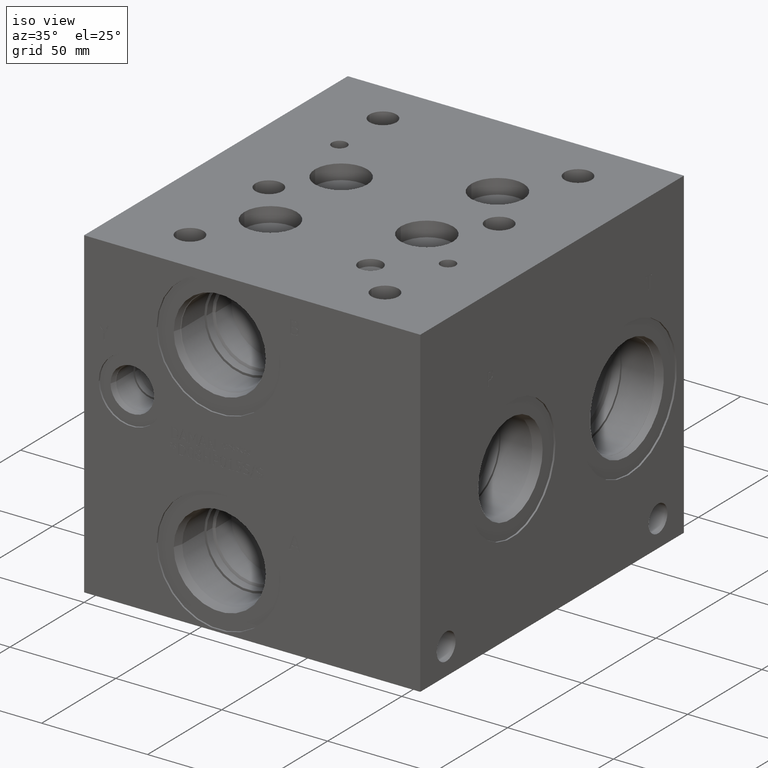
[diagram: clean part render]
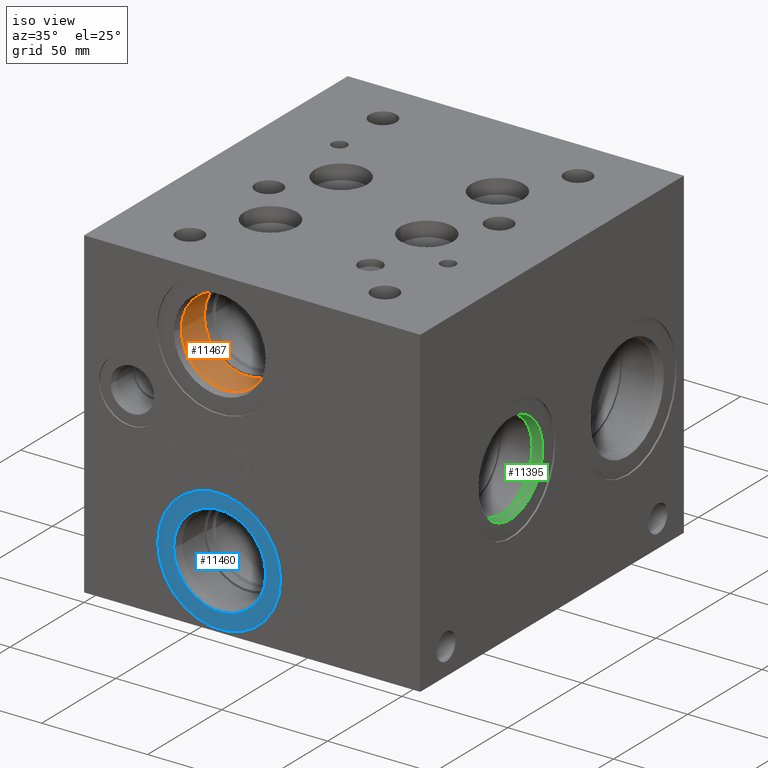
[diagram: same view with three faces highlighted in distinct colors, each labeled with its STEP entity id]
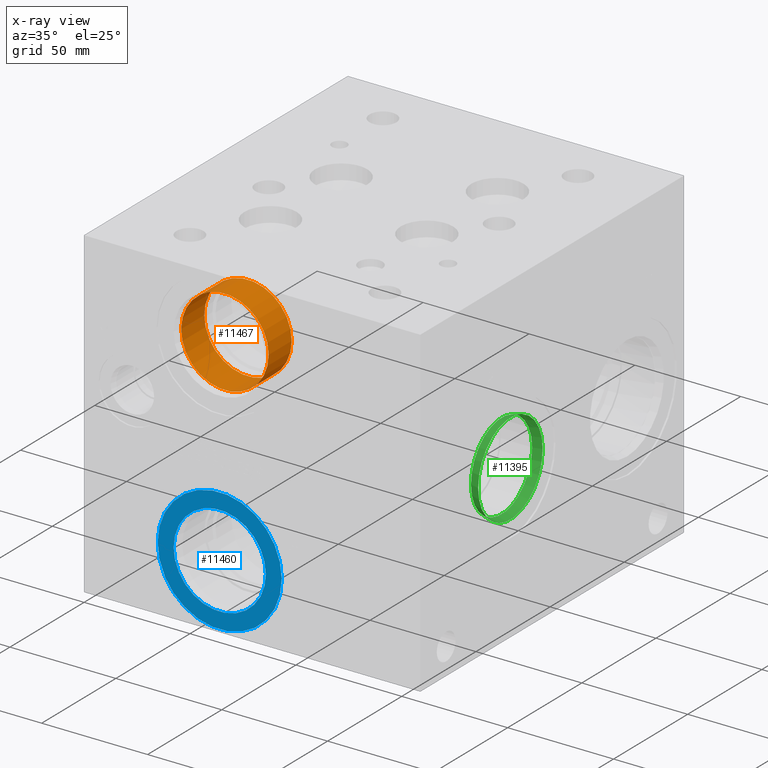
[diagram: x-ray of the same camera — body ghosted, the three highlighted faces saturated]
A machine part, iso view with three faces highlighted in distinct colors.
The next image is the same camera in x-ray (body ghosted, the three faces saturated) — at least one of them is partly hidden behind the body in this view.
Their STEP definitions:

[orange] entity #11467 — the highlighted cylindrical surface (bore or boss wall) has radius 20.64 mm, axis along (0, -1, 0).
#107=CYLINDRICAL_SURFACE('',#12107,20.64);
#302=CIRCLE('',#12104,20.64);
#303=CIRCLE('',#12105,20.64);
#305=CIRCLE('',#12108,20.64);
#1356=FACE_OUTER_BOUND('',#2023,.T.);
#2023=EDGE_LOOP('',(#10073,#10074,#10075,#10076,#10077));
#3106=LINE('',#19579,#4157);
#4157=VECTOR('',#14404,20.64);
#5481=VERTEX_POINT('',#19570);
#5482=VERTEX_POINT('',#19571);
#5484=VERTEX_POINT('',#19577);
#7045=EDGE_CURVE('',#5481,#5482,#302,.T.);
#7046=EDGE_CURVE('',#5482,#5481,#303,.T.);
#7048=EDGE_CURVE('',#5484,#5484,#305,.T.);
#7049=EDGE_CURVE('',#5484,#5482,#3106,.T.);
#10073=ORIENTED_EDGE('',*,*,#7048,.F.);
#10074=ORIENTED_EDGE('',*,*,#7049,.T.);
#10075=ORIENTED_EDGE('',*,*,#7045,.F.);
#10076=ORIENTED_EDGE('',*,*,#7046,.F.);
#10077=ORIENTED_EDGE('',*,*,#7049,.F.);
#11467=ADVANCED_FACE('',(#1356),#107,.F.);
#12104=AXIS2_PLACEMENT_3D('',#19572,#14394,#14395);
#12105=AXIS2_PLACEMENT_3D('',#19573,#14396,#14397);
#12107=AXIS2_PLACEMENT_3D('',#19576,#14400,#14401);
#12108=AXIS2_PLACEMENT_3D('',#19578,#14402,#14403);
#14394=DIRECTION('center_axis',(0.,-1.,0.));
#14395=DIRECTION('ref_axis',(1.,0.,0.));
#14396=DIRECTION('center_axis',(0.,-1.,0.));
#14397=DIRECTION('ref_axis',(1.,0.,0.));
#14400=DIRECTION('center_axis',(0.,-1.,0.));
#14401=DIRECTION('ref_axis',(1.,0.,0.));
#14402=DIRECTION('center_axis',(0.,1.,0.));
#14403=DIRECTION('ref_axis',(1.,0.,0.));
#14404=DIRECTION('',(0.,1.,0.));
#19570=CARTESIAN_POINT('',(84.14,19.8374,122.2248));
#19571=CARTESIAN_POINT('',(42.86,19.8374,122.2248));
#19572=CARTESIAN_POINT('Origin',(63.5,19.8374,122.2248));
#19573=CARTESIAN_POINT('Origin',(63.5,19.8374,122.2248));
#19576=CARTESIAN_POINT('Origin',(63.5,9.9187,122.2248));
#19577=CARTESIAN_POINT('',(42.86,4.30279999999999,122.2248));
#19578=CARTESIAN_POINT('Origin',(63.5,4.30279999999999,122.2248));
#19579=CARTESIAN_POINT('',(42.86,9.9187,122.2248));

[blue] entity #11460 — the highlighted planar face has unit normal (0, -1, 0).
#294=CIRCLE('',#12090,29.2862);
#295=CIRCLE('',#12091,29.2862);
#296=CIRCLE('',#12092,21.7551);
#455=FACE_BOUND('',#2015,.T.);
#798=PLANE('',#12089);
#1349=FACE_OUTER_BOUND('',#2014,.T.);
#2014=EDGE_LOOP('',(#10042,#10043));
#2015=EDGE_LOOP('',(#10044));
#5472=VERTEX_POINT('',#19542);
#5473=VERTEX_POINT('',#19543);
#5474=VERTEX_POINT('',#19546);
#7032=EDGE_CURVE('',#5472,#5473,#294,.T.);
#7033=EDGE_CURVE('',#5473,#5472,#295,.T.);
#7034=EDGE_CURVE('',#5474,#5474,#296,.T.);
#10042=ORIENTED_EDGE('',*,*,#7032,.T.);
#10043=ORIENTED_EDGE('',*,*,#7033,.T.);
#10044=ORIENTED_EDGE('',*,*,#7034,.F.);
#11460=ADVANCED_FACE('',(#1349,#455),#798,.T.);
#12089=AXIS2_PLACEMENT_3D('',#19541,#14359,#14360);
#12090=AXIS2_PLACEMENT_3D('',#19544,#14361,#14362);
#12091=AXIS2_PLACEMENT_3D('',#19545,#14363,#14364);
#12092=AXIS2_PLACEMENT_3D('',#19547,#14365,#14366);
#14359=DIRECTION('center_axis',(0.,-1.,0.));
#14360=DIRECTION('ref_axis',(1.,0.,0.));
#14361=DIRECTION('center_axis',(0.,-1.,0.));
#14362=DIRECTION('ref_axis',(1.,0.,0.));
#14363=DIRECTION('center_axis',(0.,-1.,0.));
#14364=DIRECTION('ref_axis',(1.,0.,0.));
#14365=DIRECTION('center_axis',(0.,-1.,0.));
#14366=DIRECTION('ref_axis',(1.,0.,0.));
#19541=CARTESIAN_POINT('Origin',(63.5,0.7874,30.1752));
#19542=CARTESIAN_POINT('',(92.7862,0.7874,30.1752));
#19543=CARTESIAN_POINT('',(34.2138,0.7874,30.1752));
#19544=CARTESIAN_POINT('Origin',(63.5,0.7874,30.1752));
#19545=CARTESIAN_POINT('Origin',(63.5,0.7874,30.1752));
#19546=CARTESIAN_POINT('',(41.7449,0.7874,30.1752));
#19547=CARTESIAN_POINT('Origin',(63.5,0.7874,30.1752));

[green] entity #11395 — the highlighted conical surface has half-angle 15 deg.
#21=CONICAL_SURFACE('',#11926,10.87755,0.261799387799149);
#195=CIRCLE('',#11924,20.6375);
#196=CIRCLE('',#11927,21.7551);
#197=CIRCLE('',#11928,21.7551);
#1284=FACE_OUTER_BOUND('',#1937,.T.);
#1937=EDGE_LOOP('',(#9726,#9727,#9728,#9729,#9730));
#3048=LINE('',#19223,#4099);
#4099=VECTOR('',#13984,10.87755);
#5365=VERTEX_POINT('',#19214);
#5366=VERTEX_POINT('',#19220);
#5367=VERTEX_POINT('',#19221);
#6878=EDGE_CURVE('',#5365,#5365,#195,.T.);
#6881=EDGE_CURVE('',#5366,#5367,#196,.T.);
#6882=EDGE_CURVE('',#5367,#5365,#3048,.T.);
#6883=EDGE_CURVE('',#5367,#5366,#197,.T.);
#9726=ORIENTED_EDGE('',*,*,#6881,.T.);
#9727=ORIENTED_EDGE('',*,*,#6882,.T.);
#9728=ORIENTED_EDGE('',*,*,#6878,.T.);
#9729=ORIENTED_EDGE('',*,*,#6882,.F.);
#9730=ORIENTED_EDGE('',*,*,#6883,.T.);
#11395=ADVANCED_FACE('',(#1284),#21,.F.);
#11924=AXIS2_PLACEMENT_3D('',#19215,#13974,#13975);
#11926=AXIS2_PLACEMENT_3D('',#19219,#13980,#13981);
#11927=AXIS2_PLACEMENT_3D('',#19222,#13982,#13983);
#11928=AXIS2_PLACEMENT_3D('',#19224,#13985,#13986);
#13974=DIRECTION('center_axis',(-1.,0.,0.));
#13975=DIRECTION('ref_axis',(0.,1.,0.));
#13980=DIRECTION('center_axis',(1.,0.,0.));
#13981=DIRECTION('ref_axis',(0.,1.,0.));
#13982=DIRECTION('center_axis',(1.,0.,0.));
#13983=DIRECTION('ref_axis',(0.,1.,0.));
#13984=DIRECTION('',(-0.965925826289068,0.258819045102521,3.16961915143176E-17));
#13985=DIRECTION('center_axis',(1.,0.,0.));
#13986=DIRECTION('ref_axis',(0.,1.,0.));
#19214=CARTESIAN_POINT('',(153.779000017461,41.2877,71.4248));
#19215=CARTESIAN_POINT('Origin',(153.779000017461,61.9252,71.4248));
#19219=CARTESIAN_POINT('Origin',(117.354370738129,61.9252,71.4248));
#19220=CARTESIAN_POINT('',(157.94994,83.6803,71.4248));
#19221=CARTESIAN_POINT('',(157.94994,40.1701,71.4248));
#19222=CARTESIAN_POINT('Origin',(157.94994,61.9252,71.4248));
#19223=CARTESIAN_POINT('',(117.354370738129,51.04765,71.4248));
#19224=CARTESIAN_POINT('Origin',(157.94994,61.9252,71.4248));